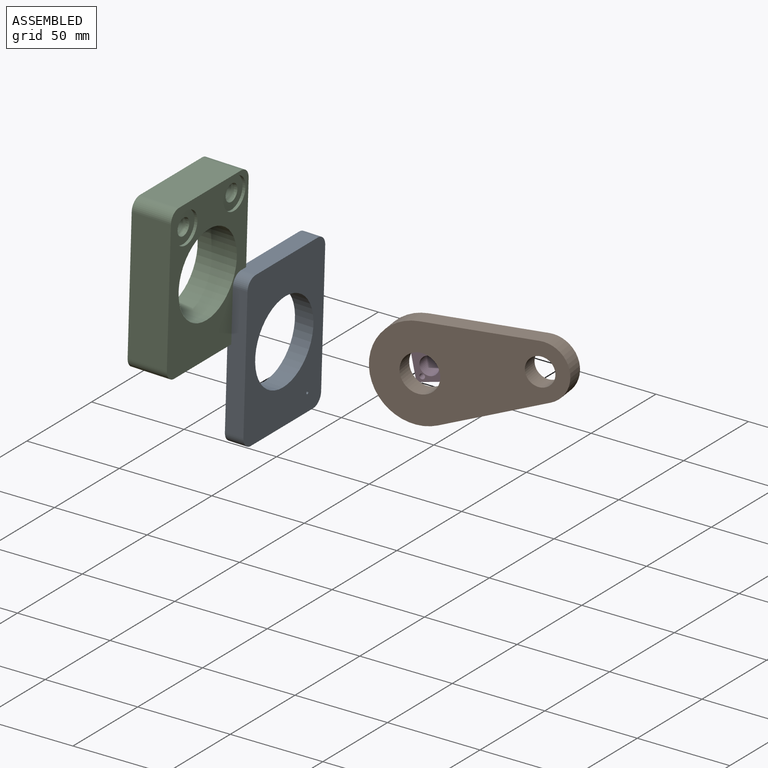
[diagram: assembled view]
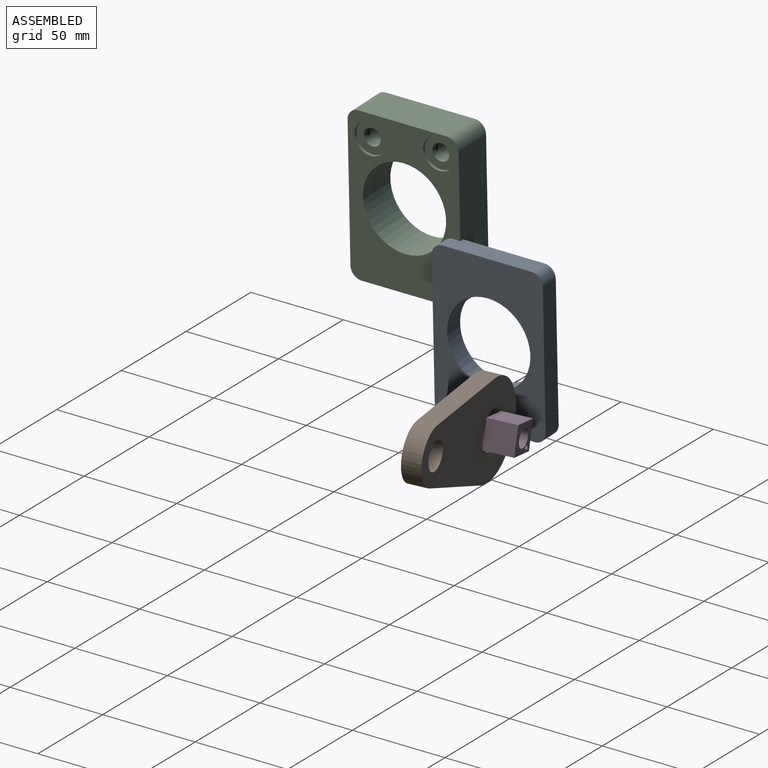
[diagram: assembled view, second angle]
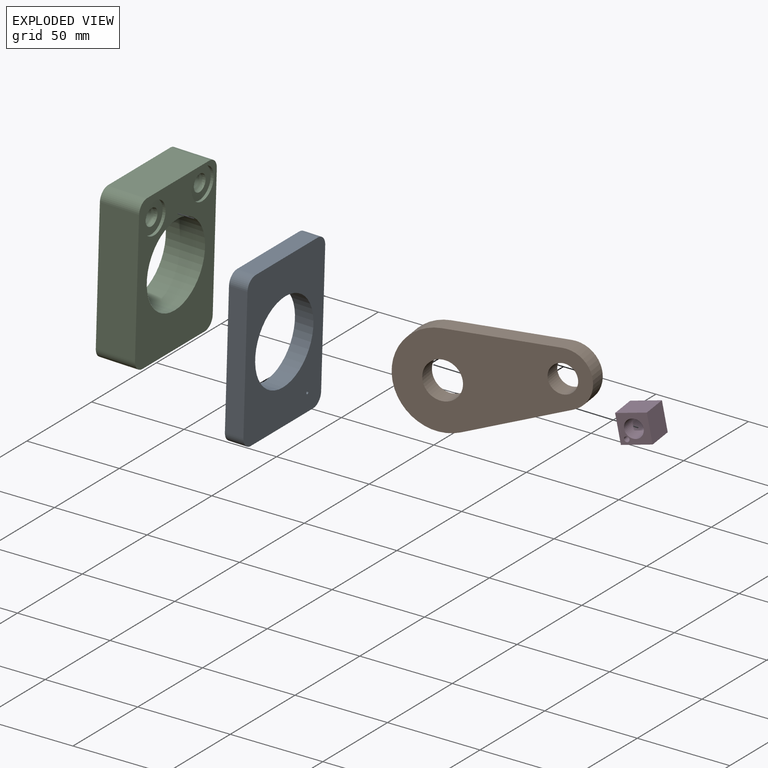
[diagram: exploded view]
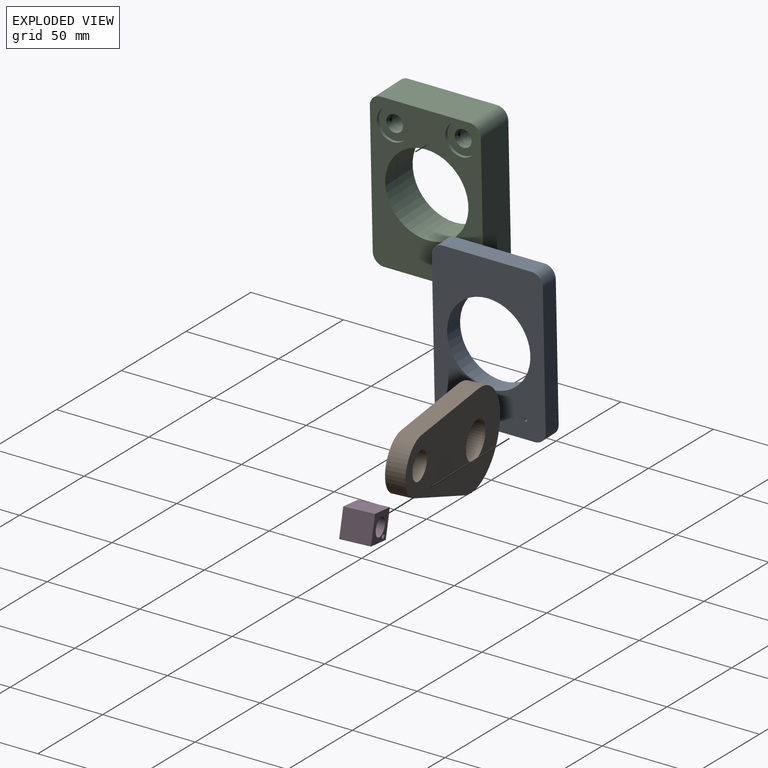
[diagram: exploded view, second angle]
ASSEMBLY  parts=4 mates=2
PART A: 12 faces, bbox 84.2x60x10 mm
  f0: plane 48x10mm, normal (1,0,0), area 480mm2, adj f4,f5,f7,f10
  f1: plane 72.21x10mm, normal (0,1,0), area 722.1mm2, adj f4,f5,f7,f8
  f2: plane 48x10mm, normal (-1,0,0), area 480mm2, adj f4,f5,f8,f9
  f3: plane 72.21x10mm, normal (0,-1,0), area 722.1mm2, adj f4,f5,f9,f10
  f4: plane 84.21x60mm, normal (0,0,1), area 3429.1mm2, adj f0,f1,f2,f3,f6,f7,f8,f9
  f5: plane 84.21x60mm, normal (0,0,-1), area 3429.1mm2, adj f0,f1,f2,f3,f6,f7,f8,f9
  f6: cylinder r=22.5mm len=45mm, axis (0,0,1), area 1413.7mm2, adj f4,f5
  f7: cylinder r=6mm len=10mm, axis (0,0,-1), area 94.2mm2, adj f0,f1,f4,f5
  f8: cylinder r=6mm len=10mm, axis (0,0,1), area 94.2mm2, adj f1,f2,f4,f5
  f9: cylinder r=6mm len=10mm, axis (0,0,-1), area 94.2mm2, adj f2,f3,f4,f5
  f10: cylinder r=6mm len=10mm, axis (0,0,1), area 94.2mm2, adj f0,f3,f4,f5
  f11: cylinder r=0.79mm len=10mm, axis (0,0,1), area 49.5mm2, adj f4,f5
PART B: 8 faces, bbox 99.8x50x10 mm
  f0: plane 58.27x10.04mm, normal (0.17,-0.99,0), area 591.3mm2, adj f1,f5,f6,f7
  f1: cylinder r=14.82mm len=29.2mm, axis (0,0,-1), area 414.9mm2, adj f0,f2,f6,f7
  f2: plane 58.27x10.04mm, normal (0.17,0.99,0), area 591.3mm2, adj f1,f5,f6,f7
  f3: cylinder r=10mm len=20mm, axis (0,0,-1), area 628.3mm2, adj f6,f7
  f4: cylinder r=7.5mm len=15mm, axis (0,0,-1), area 471.2mm2, adj f6,f7
  f5: cylinder r=25mm len=50mm, axis (0,0,-1), area 870.7mm2, adj f0,f2,f6,f7
  f6: plane 99.82x50mm, normal (0,0,1), area 3259.2mm2, adj f0,f1,f2,f3,f4,f5
  f7: plane 99.82x50mm, normal (0,0,-1), area 3259.2mm2, adj f0,f1,f2,f3,f4,f5
PART C: 25 faces, bbox 84.2x60x21.2 mm
  f0: plane 48x21.2mm, normal (1,0,0), area 1017.6mm2, adj f1,f8,f9,f10
  f1: cylinder r=6mm len=21.2mm, axis (0,0,-1), area 199.8mm2, adj f0,f2,f9,f10
  f2: plane 72.21x21.2mm, normal (0,1,0), area 1530.8mm2, adj f1,f3,f9,f10
  f3: cylinder r=6mm len=21.2mm, axis (0,0,-1), area 199.8mm2, adj f2,f4,f9,f10
  f4: plane 48x21.2mm, normal (-1,0,0), area 1017.6mm2, adj f3,f5,f9,f10
  f5: cylinder r=6mm len=21.2mm, axis (0,0,-1), area 199.8mm2, adj f4,f6,f9,f10
  f6: plane 72.21x21.2mm, normal (0,-1,0), area 1530.8mm2, adj f5,f8,f9,f10
  f7: cylinder r=22.5mm len=45mm, axis (0,0,-1), area 2997.1mm2, adj f9,f10
  f8: cylinder r=6mm len=21.2mm, axis (0,0,-1), area 199.8mm2, adj f0,f6,f9,f10
  f9: plane 84.21x60mm, normal (0,0,1), area 2973.4mm2, adj f0,f1,f2,f3,f4,f5,f6,f7
  f10: plane 84.21x60mm, normal (0,0,-1), area 3427.1mm2, adj f0,f1,f2,f3,f4,f5,f6,f7
  f11: cylinder r=0.79mm len=5.17mm, axis (0,0,1), area 25.6mm2, adj f10,f12
  f12: cone r=0.79mm half-angle=45deg, axis (0,0,1), area 47.2mm2, adj f11,f13
  f13: cylinder r=3.35mm len=9.22mm, axis (0,0,1), area 194.2mm2, adj f12,f14
  f14: cone r=3.35mm half-angle=45deg, axis (0,0,1), area 26.2mm2, adj f13,f15
  f15: cone r=4.14mm half-angle=12.2deg, axis (0,0,1), area 52.5mm2, adj f14,f16
  f16: plane 17.07x17.07mm, normal (0,0,1), area 163.9mm2, adj f15,f17
  f17: cylinder r=8.53mm len=17.07mm, axis (0,0,1), area 84.4mm2, adj f9,f16
  f18: cylinder r=0.79mm len=5.17mm, axis (0,0,1), area 25.6mm2, adj f10,f19
  f19: cone r=0.79mm half-angle=45deg, axis (0,0,1), area 47.2mm2, adj f18,f20
  f20: cylinder r=3.35mm len=9.22mm, axis (0,0,1), area 194.2mm2, adj f19,f21
  f21: cone r=3.35mm half-angle=45deg, axis (0,0,1), area 26.2mm2, adj f20,f22
  f22: cone r=4.14mm half-angle=12.2deg, axis (0,0,1), area 52.5mm2, adj f21,f23
  f23: plane 17.07x17.07mm, normal (0,0,1), area 163.9mm2, adj f22,f24
  f24: cylinder r=8.53mm len=17.07mm, axis (0,0,1), area 84.4mm2, adj f9,f23
PART D: 8 faces, bbox 15.1x15.8x15.6 mm
  f0: plane 15.83x15.6mm, normal (1,0,0), area 247mm2, adj f1,f5,f6,f7
  f1: plane 15.6x15.11mm, normal (0,1,0), area 235.7mm2, adj f0,f2,f6,f7
  f2: plane 15.83x15.6mm, normal (-1,0,0), area 247mm2, adj f1,f5,f6,f7
  f3: cylinder r=4.86mm len=15.6mm, axis (0,0,-1), area 476.4mm2, adj f6,f7
  f4: cylinder r=1.38mm len=15.6mm, axis (0,0,-1), area 135mm2, adj f6,f7
  f5: plane 15.6x15.11mm, normal (0,-1,0), area 235.7mm2, adj f0,f2,f6,f7
  f6: plane 15.83x15.11mm, normal (0,0,1), area 159mm2, adj f0,f1,f2,f3,f4,f5
  f7: plane 15.83x15.11mm, normal (0,0,-1), area 159mm2, adj f0,f1,f2,f3,f4,f5
PLACE A rot(axis=(0,-1,0),88.2deg) t=(0.43,33.96,75.13)mm
PLACE B rot(axis=(-0.98,-0.19,-0.02),92.1deg) t=(66.2,34.99,133.25)mm
PLACE C rot(axis=(0,1,0),91.8deg) t=(-37.14,-16.04,126.31)mm fixed
PLACE D rot(axis=(0.62,0.6,-0.5),107deg) t=(19.04,114.7,88.43)mm
MATE revolute B.f3 <-> D.f6  axis (-0.17,0.99,-0.04) through (52.37,71.92,62.9)mm
MATE slider A.f4 <-> C.f9  axis (-1,0,0.03) through (-9.56,63.96,75.44)mm
